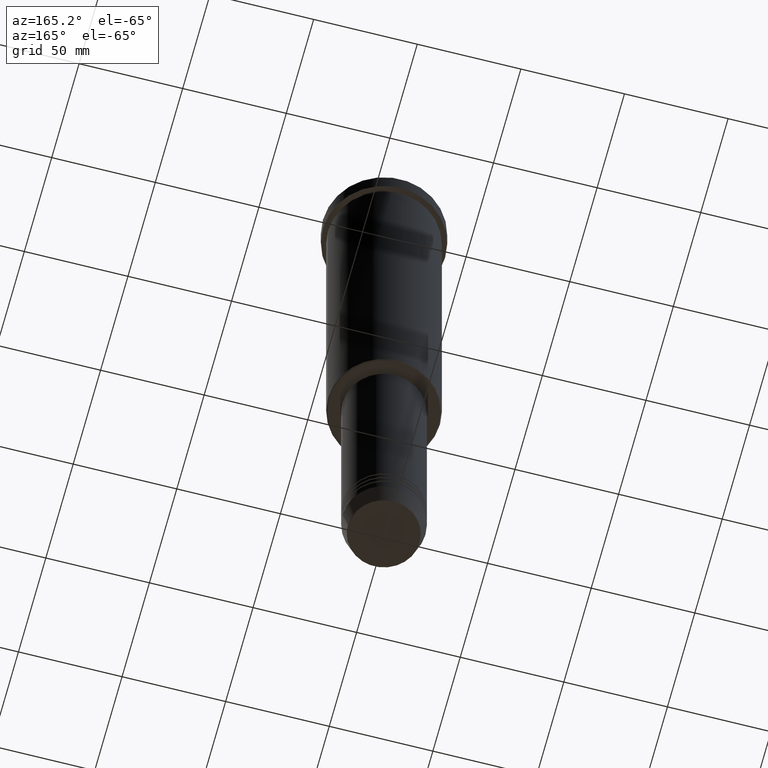
[diagram: clean part render]
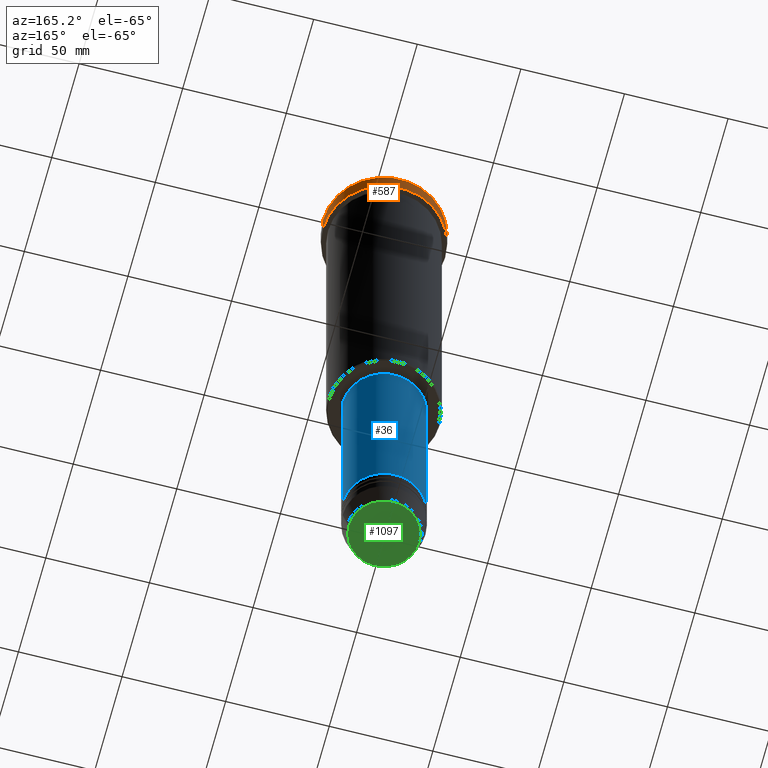
[diagram: same view with three faces highlighted in distinct colors, each labeled with its STEP entity id]
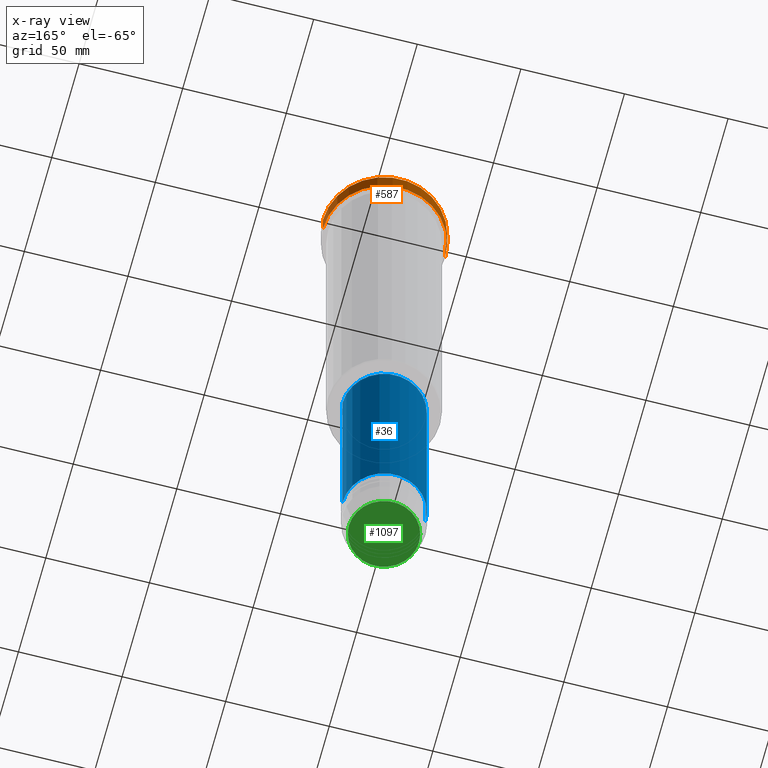
[diagram: x-ray of the same camera — body ghosted, the three highlighted faces saturated]
A machine part, auxiliary view with three faces highlighted in distinct colors.
The next image is the same camera in x-ray (body ghosted, the three faces saturated) — at least one of them is partly hidden behind the body in this view.
Their STEP definitions:

[orange] entity #587 — the highlighted cylindrical surface (partial cylindrical patch) has radius 29.5 mm, axis along (-0, -0, 1).
#4 = DIRECTION ( 'NONE',  ( 1.000000000000000000, 0.000000000000000000, 0.000000000000000000 ) ) ;
#25 = ORIENTED_EDGE ( 'NONE', *, *, #464, .T. ) ;
#37 = DIRECTION ( 'NONE',  ( 1.000000000000000000, 0.000000000000000000, 0.000000000000000000 ) ) ;
#45 = DIRECTION ( 'NONE',  ( -0.000000000000000000, -0.000000000000000000, 1.000000000000000000 ) ) ;
#74 = CARTESIAN_POINT ( 'NONE',  ( 0.000000000000000000, 0.000000000000000000, -0.5000000000001392220 ) ) ;
#159 = EDGE_CURVE ( 'NONE', #1099, #238, #1119, .T. ) ;
#172 = DIRECTION ( 'NONE',  ( 0.000000000000000000, 0.000000000000000000, -1.000000000000000000 ) ) ;
#238 = VERTEX_POINT ( 'NONE', #676 ) ;
#241 = DIRECTION ( 'NONE',  ( -0.000000000000000000, -0.000000000000000000, 1.000000000000000000 ) ) ;
#242 = EDGE_CURVE ( 'NONE', #1099, #497, #1170, .T. ) ;
#248 = ORIENTED_EDGE ( 'NONE', *, *, #376, .T. ) ;
#256 = CARTESIAN_POINT ( 'NONE',  ( -29.50000000000000000, 3.612708057484691604E-15, -0.5000000000001392220 ) ) ;
#290 = CIRCLE ( 'NONE', #436, 29.50000000000000000 ) ;
#376 = EDGE_CURVE ( 'NONE', #497, #906, #894, .T. ) ;
#436 = AXIS2_PLACEMENT_3D ( 'NONE', #74, #172, #880 ) ;
#464 = EDGE_CURVE ( 'NONE', #906, #238, #290, .T. ) ;
#466 = EDGE_LOOP ( 'NONE', ( #1068, #248, #25, #1053 ) ) ;
#497 = VERTEX_POINT ( 'NONE', #696 ) ;
#538 = CARTESIAN_POINT ( 'NONE',  ( 29.50000000000000000, 0.000000000000000000, 0.000000000000000000 ) ) ;
#547 = CARTESIAN_POINT ( 'NONE',  ( 0.000000000000000000, 0.000000000000000000, 0.000000000000000000 ) ) ;
#557 = CARTESIAN_POINT ( 'NONE',  ( 29.50000000000000000, 0.000000000000000000, -9.999999999999992895 ) ) ;
#587 = ADVANCED_FACE ( 'NONE', ( #827 ), #625, .T. ) ;
#625 = CYLINDRICAL_SURFACE ( 'NONE', #755, 29.50000000000000000 ) ;
#633 = DIRECTION ( 'NONE',  ( -0.000000000000000000, -0.000000000000000000, 1.000000000000000000 ) ) ;
#676 = CARTESIAN_POINT ( 'NONE',  ( 29.50000000000000000, 0.000000000000000000, -0.5000000000001392220 ) ) ;
#696 = CARTESIAN_POINT ( 'NONE',  ( -29.50000000000000000, 3.612708057484691604E-15, -9.999999999999992895 ) ) ;
#755 = AXIS2_PLACEMENT_3D ( 'NONE', #547, #1006, #4 ) ;
#773 = VECTOR ( 'NONE', #633, 1000.000000000000000 ) ;
#827 = FACE_OUTER_BOUND ( 'NONE', #466, .T. ) ;
#880 = DIRECTION ( 'NONE',  ( 1.000000000000000000, 0.000000000000000000, 0.000000000000000000 ) ) ;
#891 = VECTOR ( 'NONE', #241, 1000.000000000000000 ) ;
#894 = LINE ( 'NONE', #1073, #891 ) ;
#906 = VERTEX_POINT ( 'NONE', #256 ) ;
#1006 = DIRECTION ( 'NONE',  ( -0.000000000000000000, -0.000000000000000000, 1.000000000000000000 ) ) ;
#1053 = ORIENTED_EDGE ( 'NONE', *, *, #159, .F. ) ;
#1061 = CARTESIAN_POINT ( 'NONE',  ( 0.000000000000000000, 0.000000000000000000, -9.999999999999992895 ) ) ;
#1068 = ORIENTED_EDGE ( 'NONE', *, *, #242, .T. ) ;
#1073 = CARTESIAN_POINT ( 'NONE',  ( -29.50000000000000000, 3.612708057484691604E-15, 0.000000000000000000 ) ) ;
#1099 = VERTEX_POINT ( 'NONE', #557 ) ;
#1119 = LINE ( 'NONE', #538, #773 ) ;
#1153 = AXIS2_PLACEMENT_3D ( 'NONE', #1061, #45, #37 ) ;
#1170 = CIRCLE ( 'NONE', #1153, 29.50000000000000000 ) ;

[blue] entity #36 — the highlighted cylindrical surface (partial cylindrical patch) has radius 20 mm, axis along (-0, -0, 1).
#27 = AXIS2_PLACEMENT_3D ( 'NONE', #243, #86, #1177 ) ;
#36 = ADVANCED_FACE ( 'NONE', ( #1092 ), #908, .T. ) ;
#63 = CARTESIAN_POINT ( 'NONE',  ( 19.99999999999999645, 0.000000000000000000, 0.000000000000000000 ) ) ;
#79 = VERTEX_POINT ( 'NONE', #936 ) ;
#81 = EDGE_LOOP ( 'NONE', ( #365, #957, #283, #355 ) ) ;
#86 = DIRECTION ( 'NONE',  ( -0.000000000000000000, -0.000000000000000000, 1.000000000000000000 ) ) ;
#91 = CIRCLE ( 'NONE', #380, 19.99999999999999645 ) ;
#158 = CARTESIAN_POINT ( 'NONE',  ( 0.000000000000000000, 0.000000000000000000, -196.9999999999999147 ) ) ;
#243 = CARTESIAN_POINT ( 'NONE',  ( 0.000000000000000000, 0.000000000000000000, 0.000000000000000000 ) ) ;
#263 = VERTEX_POINT ( 'NONE', #1051 ) ;
#283 = ORIENTED_EDGE ( 'NONE', *, *, #480, .F. ) ;
#303 = CARTESIAN_POINT ( 'NONE',  ( -20.00000000000000000, 2.449293598294706513E-15, -306.9999999999999432 ) ) ;
#332 = DIRECTION ( 'NONE',  ( -0.000000000000000000, -0.000000000000000000, 1.000000000000000000 ) ) ;
#355 = ORIENTED_EDGE ( 'NONE', *, *, #666, .F. ) ;
#365 = ORIENTED_EDGE ( 'NONE', *, *, #549, .T. ) ;
#380 = AXIS2_PLACEMENT_3D ( 'NONE', #158, #332, #610 ) ;
#410 = DIRECTION ( 'NONE',  ( -0.000000000000000000, -0.000000000000000000, 1.000000000000000000 ) ) ;
#449 = DIRECTION ( 'NONE',  ( -0.000000000000000000, -0.000000000000000000, 1.000000000000000000 ) ) ;
#480 = EDGE_CURVE ( 'NONE', #1009, #79, #91, .T. ) ;
#488 = LINE ( 'NONE', #63, #1064 ) ;
#521 = DIRECTION ( 'NONE',  ( -0.000000000000000000, -0.000000000000000000, 1.000000000000000000 ) ) ;
#549 = EDGE_CURVE ( 'NONE', #263, #579, #872, .T. ) ;
#559 = CARTESIAN_POINT ( 'NONE',  ( 19.99999999999999645, 0.000000000000000000, -196.9999999999999147 ) ) ;
#579 = VERTEX_POINT ( 'NONE', #303 ) ;
#610 = DIRECTION ( 'NONE',  ( 1.000000000000000000, 0.000000000000000000, 0.000000000000000000 ) ) ;
#618 = CARTESIAN_POINT ( 'NONE',  ( -19.99999999999999645, 2.449293598294706119E-15, 0.000000000000000000 ) ) ;
#666 = EDGE_CURVE ( 'NONE', #263, #1009, #488, .T. ) ;
#726 = LINE ( 'NONE', #618, #953 ) ;
#727 = CARTESIAN_POINT ( 'NONE',  ( 0.000000000000000000, 0.000000000000000000, -306.9999999999999432 ) ) ;
#770 = DIRECTION ( 'NONE',  ( 1.000000000000000000, 0.000000000000000000, 0.000000000000000000 ) ) ;
#850 = EDGE_CURVE ( 'NONE', #579, #79, #726, .T. ) ;
#872 = CIRCLE ( 'NONE', #1015, 20.00000000000000000 ) ;
#908 = CYLINDRICAL_SURFACE ( 'NONE', #27, 19.99999999999999645 ) ;
#936 = CARTESIAN_POINT ( 'NONE',  ( -19.99999999999999645, 2.449293598294706119E-15, -196.9999999999999147 ) ) ;
#953 = VECTOR ( 'NONE', #521, 1000.000000000000000 ) ;
#957 = ORIENTED_EDGE ( 'NONE', *, *, #850, .T. ) ;
#1009 = VERTEX_POINT ( 'NONE', #559 ) ;
#1015 = AXIS2_PLACEMENT_3D ( 'NONE', #727, #449, #770 ) ;
#1051 = CARTESIAN_POINT ( 'NONE',  ( 20.00000000000000000, 0.000000000000000000, -306.9999999999999432 ) ) ;
#1064 = VECTOR ( 'NONE', #410, 1000.000000000000000 ) ;
#1092 = FACE_OUTER_BOUND ( 'NONE', #81, .T. ) ;
#1177 = DIRECTION ( 'NONE',  ( 1.000000000000000000, 0.000000000000000000, 0.000000000000000000 ) ) ;

[green] entity #1097 — the highlighted planar face has unit normal (0, -0, 1).
#80 = CARTESIAN_POINT ( 'NONE',  ( 0.000000000000000000, 0.000000000000000000, -331.0000000000000000 ) ) ;
#169 = PLANE ( 'NONE',  #655 ) ;
#346 = CIRCLE ( 'NONE', #837, 16.93684458169928675 ) ;
#378 = EDGE_LOOP ( 'NONE', ( #457, #762 ) ) ;
#379 = DIRECTION ( 'NONE',  ( 1.000000000000000000, 0.000000000000000000, 0.000000000000000000 ) ) ;
#457 = ORIENTED_EDGE ( 'NONE', *, *, #1022, .T. ) ;
#510 = CARTESIAN_POINT ( 'NONE',  ( -16.93684458169928675, 2.103738199747889592E-15, -331.0000000000000000 ) ) ;
#516 = VERTEX_POINT ( 'NONE', #510 ) ;
#622 = DIRECTION ( 'NONE',  ( 1.000000000000000000, 0.000000000000000000, 0.000000000000000000 ) ) ;
#634 = CARTESIAN_POINT ( 'NONE',  ( 16.93684458169928675, 0.000000000000000000, -331.0000000000000000 ) ) ;
#653 = CARTESIAN_POINT ( 'NONE',  ( 0.000000000000000000, 0.000000000000000000, -331.0000000000000000 ) ) ;
#655 = AXIS2_PLACEMENT_3D ( 'NONE', #80, #716, #622 ) ;
#674 = CIRCLE ( 'NONE', #840, 16.93684458169928675 ) ;
#680 = EDGE_CURVE ( 'NONE', #516, #1180, #346, .T. ) ;
#716 = DIRECTION ( 'NONE',  ( 0.000000000000000000, -0.000000000000000000, 1.000000000000000000 ) ) ;
#762 = ORIENTED_EDGE ( 'NONE', *, *, #680, .T. ) ;
#782 = DIRECTION ( 'NONE',  ( 1.000000000000000000, 0.000000000000000000, 0.000000000000000000 ) ) ;
#791 = DIRECTION ( 'NONE',  ( 0.000000000000000000, 0.000000000000000000, -1.000000000000000000 ) ) ;
#837 = AXIS2_PLACEMENT_3D ( 'NONE', #1054, #791, #782 ) ;
#840 = AXIS2_PLACEMENT_3D ( 'NONE', #653, #844, #379 ) ;
#844 = DIRECTION ( 'NONE',  ( 0.000000000000000000, 0.000000000000000000, -1.000000000000000000 ) ) ;
#999 = FACE_OUTER_BOUND ( 'NONE', #378, .T. ) ;
#1022 = EDGE_CURVE ( 'NONE', #1180, #516, #674, .T. ) ;
#1054 = CARTESIAN_POINT ( 'NONE',  ( 0.000000000000000000, 0.000000000000000000, -331.0000000000000000 ) ) ;
#1097 = ADVANCED_FACE ( 'NONE', ( #999 ), #169, .F. ) ;
#1180 = VERTEX_POINT ( 'NONE', #634 ) ;